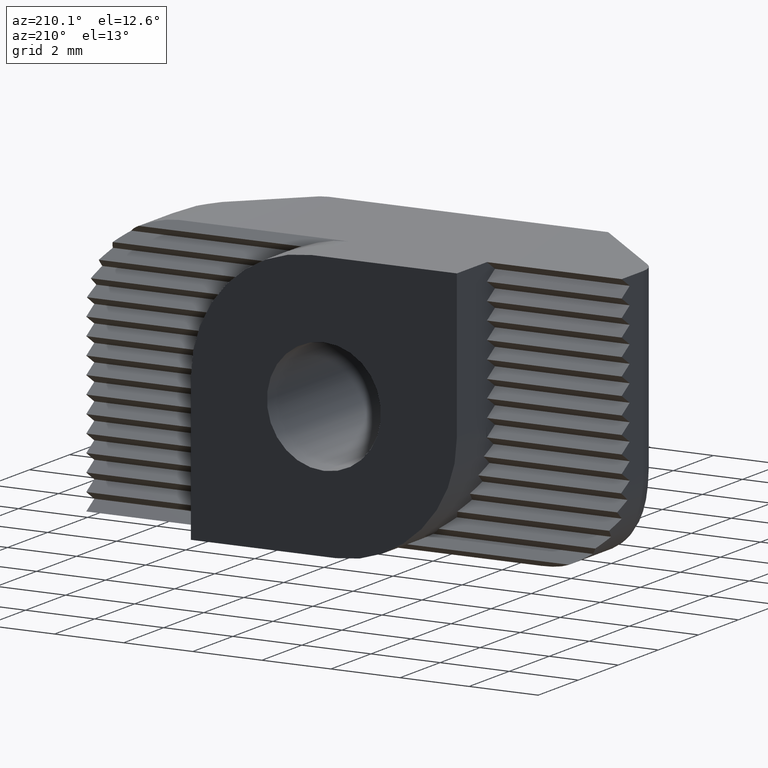
[diagram: clean part render]
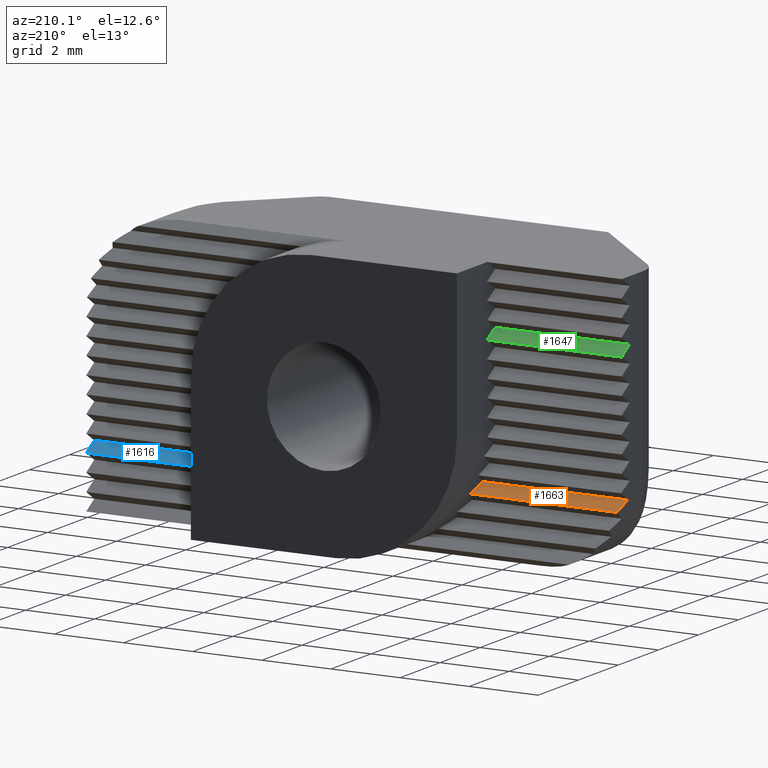
[diagram: same view with three faces highlighted in distinct colors, each labeled with its STEP entity id]
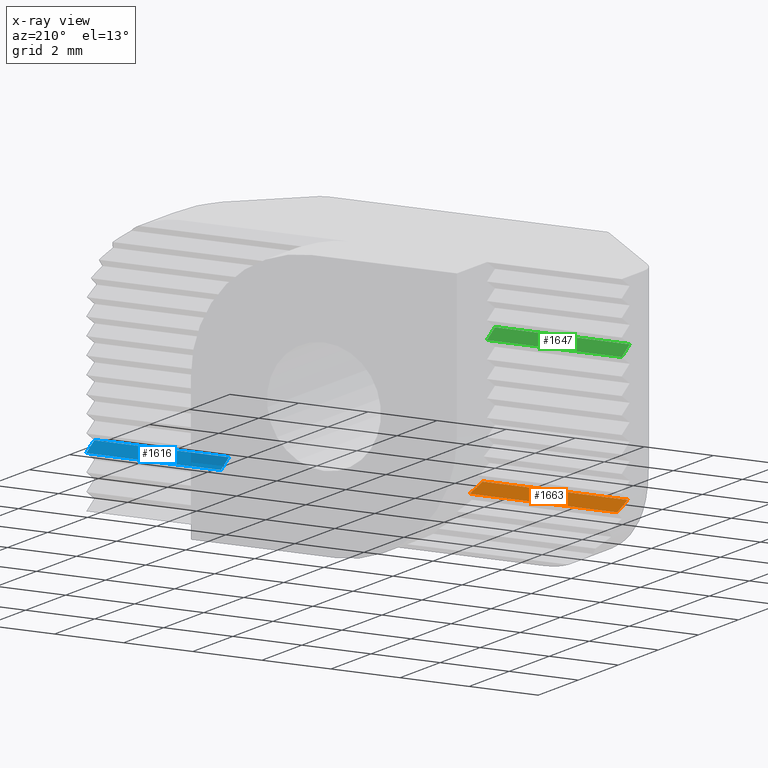
[diagram: x-ray of the same camera — body ghosted, the three highlighted faces saturated]
A machine part, auxiliary view with three faces highlighted in distinct colors.
The next image is the same camera in x-ray (body ghosted, the three faces saturated) — at least one of them is partly hidden behind the body in this view.
Their STEP definitions:

[orange] entity #1663 — the highlighted planar face has unit normal (0, -0.53, -0.848).
#37=ELLIPSE('',#1734,4.71699056492741,2.49999999894829);
#65=ELLIPSE('',#1769,6.6037867970805,3.50000000351284);
#138=PLANE('',#1828);
#217=FACE_OUTER_BOUND('',#304,.T.);
#304=EDGE_LOOP('',(#1524,#1525,#1526,#1527));
#488=LINE('',#2827,#665);
#489=LINE('',#2828,#666);
#665=VECTOR('',#2278,1000.);
#666=VECTOR('',#2279,1000.);
#781=VERTEX_POINT('',#2571);
#782=VERTEX_POINT('',#2573);
#843=VERTEX_POINT('',#2708);
#844=VERTEX_POINT('',#2710);
#954=EDGE_CURVE('',#782,#781,#37,.T.);
#1024=EDGE_CURVE('',#844,#843,#65,.T.);
#1082=EDGE_CURVE('',#844,#781,#488,.T.);
#1083=EDGE_CURVE('',#843,#782,#489,.T.);
#1524=ORIENTED_EDGE('',*,*,#954,.T.);
#1525=ORIENTED_EDGE('',*,*,#1082,.F.);
#1526=ORIENTED_EDGE('',*,*,#1024,.T.);
#1527=ORIENTED_EDGE('',*,*,#1083,.T.);
#1663=ADVANCED_FACE('',(#217),#138,.F.);
#1734=AXIS2_PLACEMENT_3D('',#2574,#1996,#1997);
#1769=AXIS2_PLACEMENT_3D('',#2711,#2106,#2107);
#1828=AXIS2_PLACEMENT_3D('',#2826,#2276,#2277);
#1996=DIRECTION('center_axis',(-1.2512272867144E-13,0.529998940003196,0.847998304005078));
#1997=DIRECTION('ref_axis',(-8.30009715388099E-11,-0.847998304005078,0.529998940003196));
#2106=DIRECTION('center_axis',(3.77443498128205E-13,-0.529998940003273,
-0.84799830400503));
#2107=DIRECTION('ref_axis',(-3.56630184246836E-10,0.84799830400503,-0.529998940003273));
#2276=DIRECTION('center_axis',(0.,-0.52999894000318,-0.847998304005088));
#2277=DIRECTION('ref_axis',(0.,0.847998304005088,-0.52999894000318));
#2278=DIRECTION('',(-1.,0.,0.));
#2279=DIRECTION('',(-1.,0.,0.));
#2571=CARTESIAN_POINT('',(-7.68874967965144,4.1,1.95));
#2573=CARTESIAN_POINT('',(-7.6185438564654,4.5,1.7));
#2574=CARTESIAN_POINT('Origin',(-5.25000000105106,3.22000000046681,2.49999999970863));
#2708=CARTESIAN_POINT('',(-3.35166620396072,4.5,1.7));
#2710=CARTESIAN_POINT('',(-3.48807265690264,4.1,1.95));
#2711=CARTESIAN_POINT('Origin',(-0.349999996518138,1.61999999690481,3.50000000193627));
#2826=CARTESIAN_POINT('Origin',(-3.20968757625671,4.1,1.95));
#2827=CARTESIAN_POINT('',(-3.20968757625671,4.1,1.95));
#2828=CARTESIAN_POINT('',(-3.20968757625671,4.5,1.7));

[blue] entity #1616 — the highlighted planar face has unit normal (0, -0.53, -0.848).
#91=PLANE('',#1781);
#170=FACE_OUTER_BOUND('',#257,.T.);
#257=EDGE_LOOP('',(#1332,#1333,#1334,#1335));
#343=LINE('',#2417,#520);
#409=LINE('',#2615,#586);
#441=LINE('',#2732,#618);
#442=LINE('',#2734,#619);
#520=VECTOR('',#1901,1000.);
#586=VECTOR('',#2027,1000.);
#618=VECTOR('',#2135,1000.);
#619=VECTOR('',#2138,1000.);
#718=VERTEX_POINT('',#2414);
#719=VERTEX_POINT('',#2416);
#800=VERTEX_POINT('',#2612);
#801=VERTEX_POINT('',#2614);
#883=EDGE_CURVE('',#719,#718,#343,.T.);
#975=EDGE_CURVE('',#800,#801,#409,.T.);
#1035=EDGE_CURVE('',#801,#718,#441,.T.);
#1036=EDGE_CURVE('',#800,#719,#442,.T.);
#1332=ORIENTED_EDGE('',*,*,#883,.T.);
#1333=ORIENTED_EDGE('',*,*,#1035,.F.);
#1334=ORIENTED_EDGE('',*,*,#975,.F.);
#1335=ORIENTED_EDGE('',*,*,#1036,.T.);
#1616=ADVANCED_FACE('',(#170),#91,.F.);
#1781=AXIS2_PLACEMENT_3D('',#2733,#2136,#2137);
#1901=DIRECTION('',(0.,0.847998304005088,-0.52999894000318));
#2027=DIRECTION('',(0.,0.847998304005088,-0.52999894000318));
#2135=DIRECTION('',(1.,0.,0.));
#2136=DIRECTION('center_axis',(0.,-0.52999894000318,-0.847998304005088));
#2137=DIRECTION('ref_axis',(0.,0.847998304005088,-0.52999894000318));
#2138=DIRECTION('',(1.,0.,0.));
#2414=CARTESIAN_POINT('',(7.75,4.5,1.5));
#2416=CARTESIAN_POINT('',(7.75,4.1,1.75));
#2417=CARTESIAN_POINT('',(7.75,4.5,1.5));
#2612=CARTESIAN_POINT('',(3.85,4.1,1.75));
#2614=CARTESIAN_POINT('',(3.85,4.5,1.5));
#2615=CARTESIAN_POINT('',(3.85,4.5,1.5));
#2732=CARTESIAN_POINT('',(3.85,4.5,1.5));
#2733=CARTESIAN_POINT('Origin',(3.85,4.5,1.5));
#2734=CARTESIAN_POINT('',(3.85,4.1,1.75));

[green] entity #1647 — the highlighted planar face has unit normal (0, -0.53, -0.848).
#122=PLANE('',#1812);
#201=FACE_OUTER_BOUND('',#288,.T.);
#288=EDGE_LOOP('',(#1458,#1459,#1460,#1461));
#368=LINE('',#2468,#545);
#428=LINE('',#2652,#605);
#472=LINE('',#2795,#649);
#473=LINE('',#2796,#650);
#545=VECTOR('',#1928,1000.);
#605=VECTOR('',#2048,1000.);
#649=VECTOR('',#2230,1000.);
#650=VECTOR('',#2231,1000.);
#743=VERTEX_POINT('',#2465);
#744=VERTEX_POINT('',#2467);
#817=VERTEX_POINT('',#2649);
#818=VERTEX_POINT('',#2651);
#908=EDGE_CURVE('',#744,#743,#368,.T.);
#994=EDGE_CURVE('',#817,#818,#428,.T.);
#1066=EDGE_CURVE('',#817,#744,#472,.T.);
#1067=EDGE_CURVE('',#818,#743,#473,.T.);
#1458=ORIENTED_EDGE('',*,*,#1066,.T.);
#1459=ORIENTED_EDGE('',*,*,#908,.T.);
#1460=ORIENTED_EDGE('',*,*,#1067,.F.);
#1461=ORIENTED_EDGE('',*,*,#994,.F.);
#1647=ADVANCED_FACE('',(#201),#122,.F.);
#1812=AXIS2_PLACEMENT_3D('',#2794,#2228,#2229);
#1928=DIRECTION('',(0.,-0.847998304005088,0.52999894000318));
#2048=DIRECTION('',(1.19402805644979E-16,-0.847998304005088,0.52999894000318));
#2228=DIRECTION('center_axis',(0.,-0.52999894000318,-0.847998304005088));
#2229=DIRECTION('ref_axis',(0.,0.847998304005088,-0.52999894000318));
#2230=DIRECTION('',(-1.,0.,0.));
#2231=DIRECTION('',(-1.,0.,0.));
#2465=CARTESIAN_POINT('',(-7.75,4.1,5.95));
#2467=CARTESIAN_POINT('',(-7.75,4.5,5.7));
#2468=CARTESIAN_POINT('',(-7.75,4.1,5.95));
#2649=CARTESIAN_POINT('',(-3.85,4.5,5.7));
#2651=CARTESIAN_POINT('',(-3.85,4.1,5.95));
#2652=CARTESIAN_POINT('',(-3.85,4.1,5.95));
#2794=CARTESIAN_POINT('Origin',(-3.20968757625671,4.1,5.95));
#2795=CARTESIAN_POINT('',(-3.20968757625671,4.5,5.7));
#2796=CARTESIAN_POINT('',(-3.20968757625671,4.1,5.95));